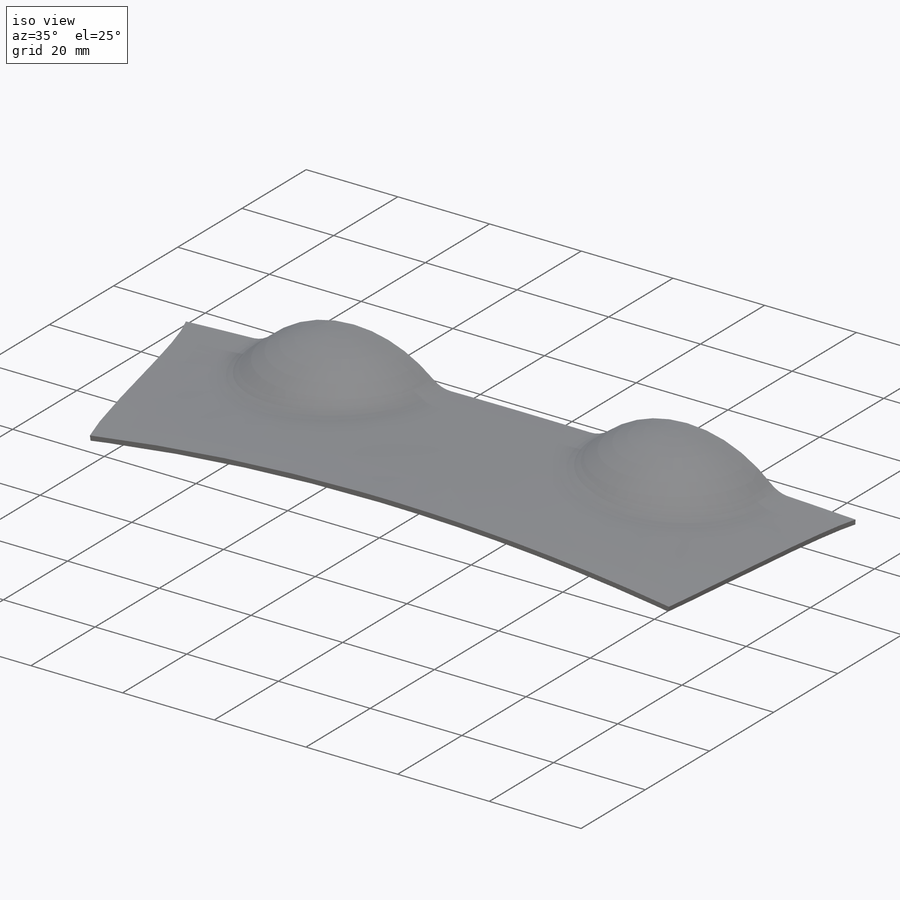
[diagram: iso view]
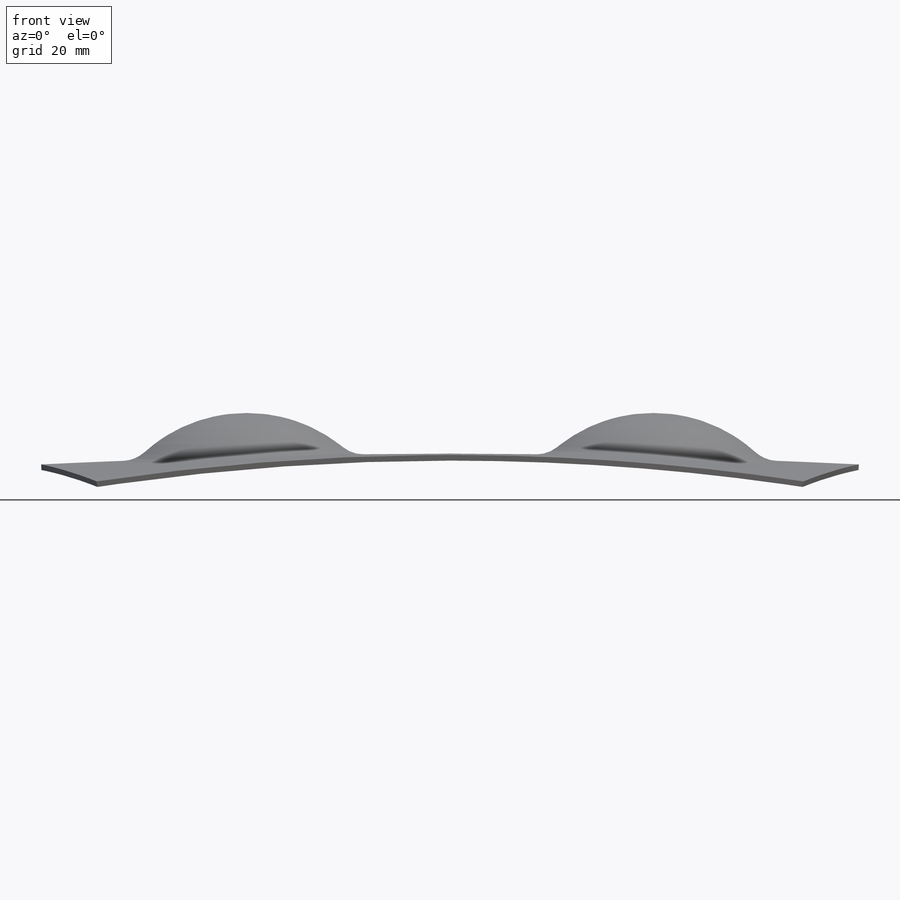
[diagram: front view]
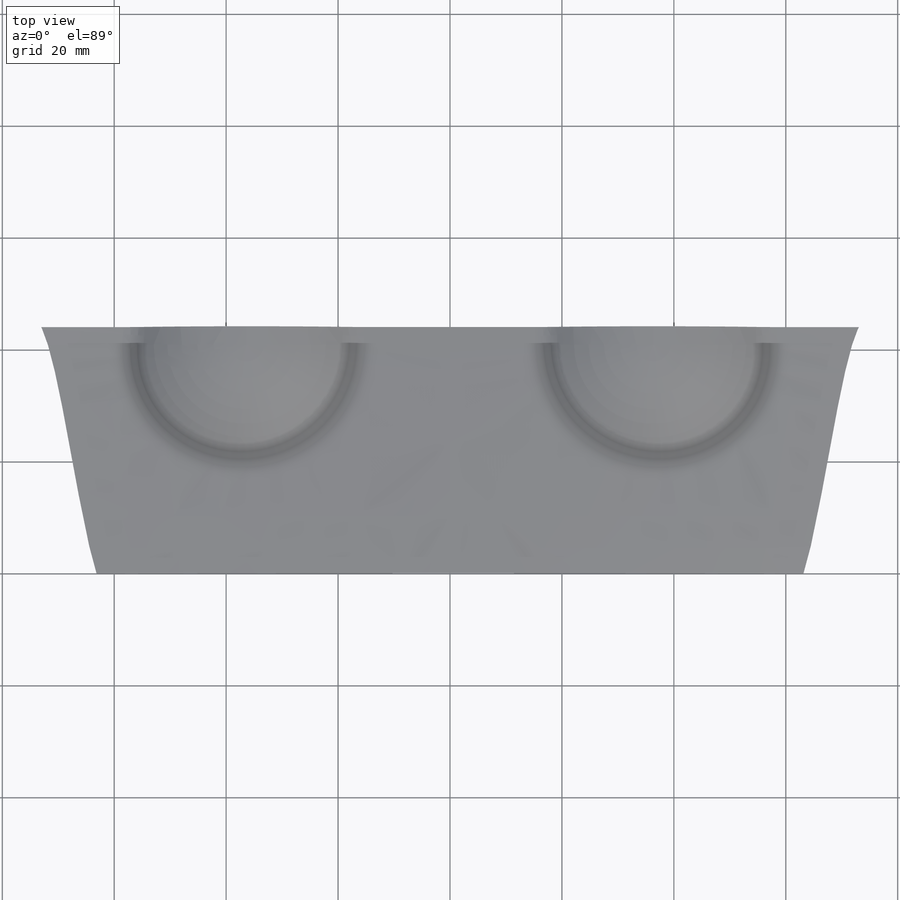
[diagram: top view]
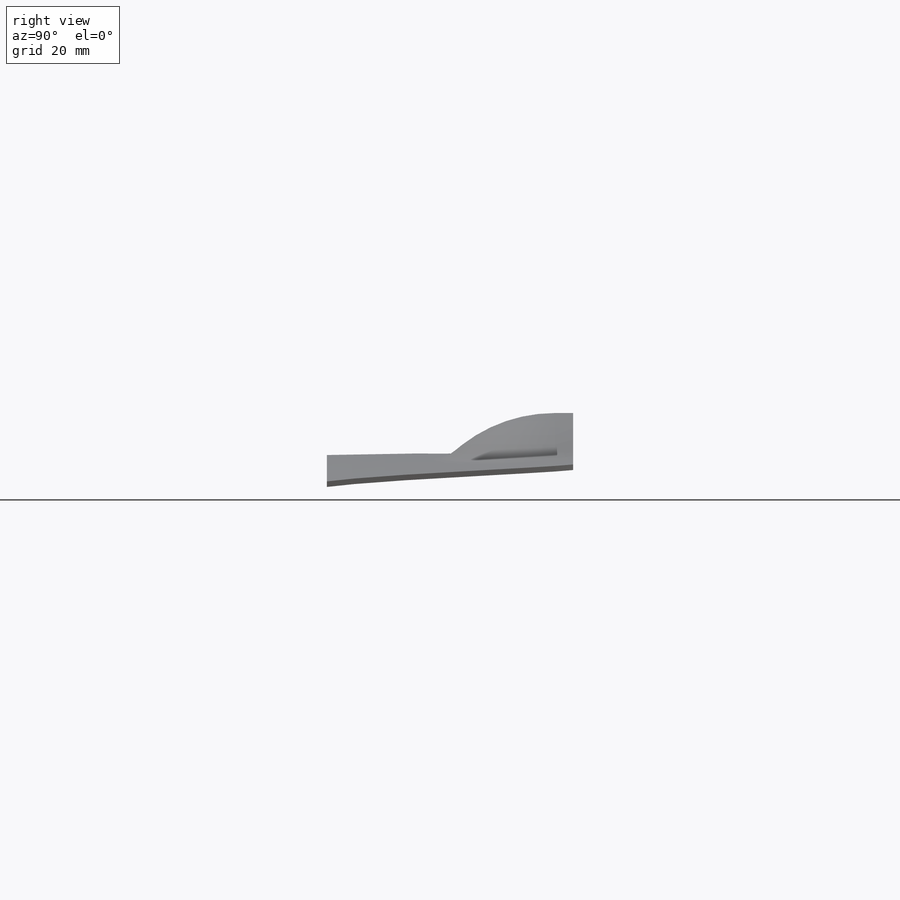
[diagram: right view]
SOLIDWORKS PART (.sldprt)
format: sldprt  version: not decoded by parser v0  size: 388,608 bytes
history: native  units: mm
features: sketch x4, fillet x2, material x1, extrude x1, shell x1, mirror x1 (+11 scaffold rows collapsed)
feature tree (21):
  scaffold x11  (default folders/planes/origin — collapsed)
  material  "ABS"
  sketch  "Sketch1"  dims[D3=425.0mm D1=1.0mm D2=63.0mm]
  sketch  "Sketch2"  dims[c1.D2=~65.490318mm c1.D3=~28.985486mm c1.D1=44.0mm c2.D2=0.1mm]
  sketch  "3DSketch2"  dims[c1.D3=1500.0mm c1.D1=1.0mm c1.D2=73.0mm c2.D3=0.0mm]
  sketch  "Sketch4"
  extrude  "Boss-Extrude1"  Depth=8.5mm
  fillet  "Fillet1"  Radius=27mm
  fillet  "Fillet2"  Radius=6mm
  shell  "Shell1"  Thickness=1mm
  mirror  "Mirror3"
decode coverage: 7 of 9 modeling features carry decoded parameters
note: ~ marks probable driven/reference dimensions
note: suppression state not decoded; provenance and decode notes live in map.json
